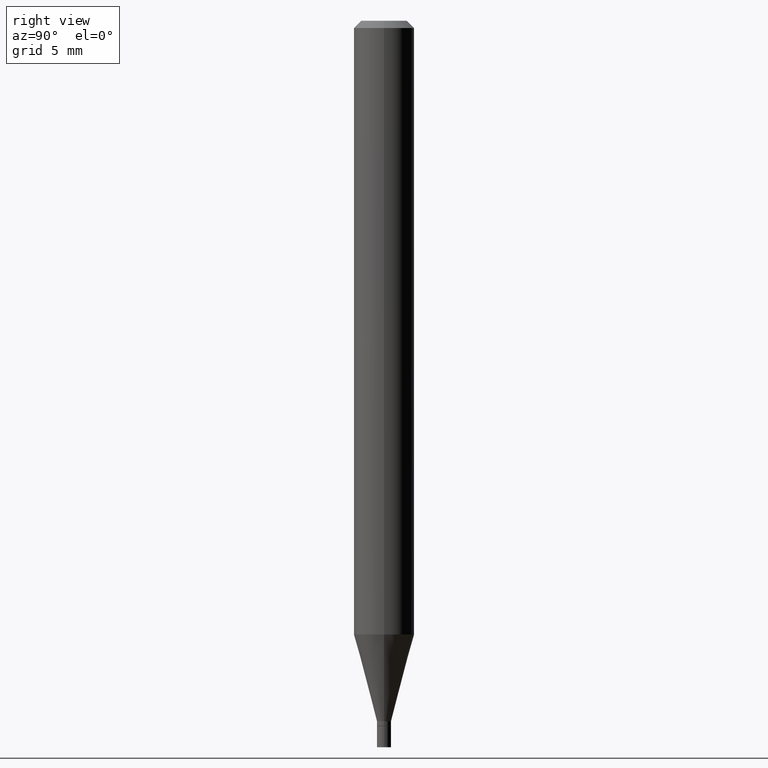
[diagram: clean part render]
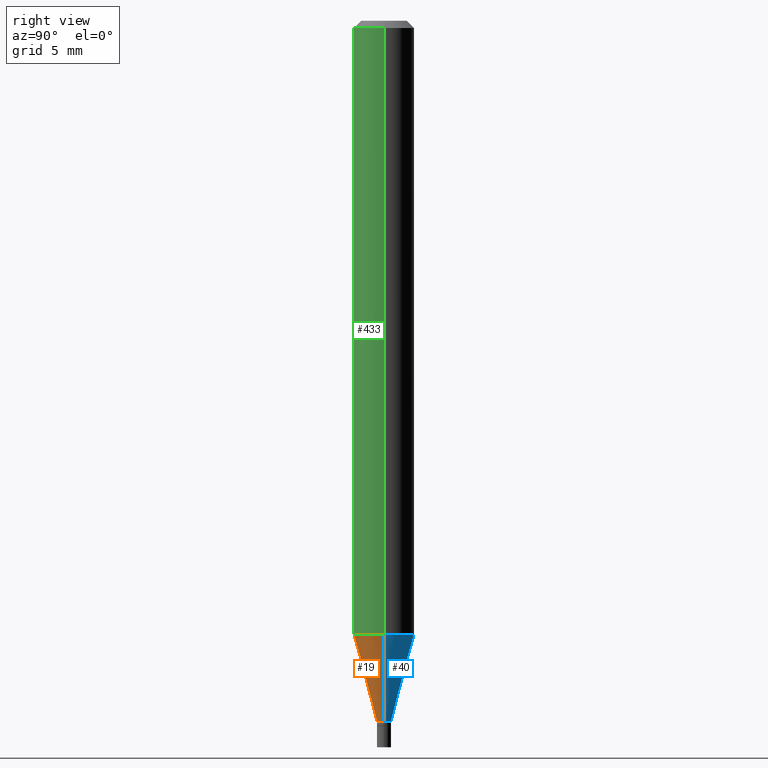
[diagram: same view with three faces highlighted in distinct colors, each labeled with its STEP entity id]
A machine part, right view with three faces highlighted in distinct colors.
Their STEP definitions:

[orange] entity #19 — the highlighted conical surface has half-angle 15 deg.
#3 = VERTEX_POINT ( 'NONE', #347 ) ;
#7 = CONICAL_SURFACE ( 'NONE', #322, 0.01449999999999992441, 0.2617993877991501295 ) ;
#9 = VECTOR ( 'NONE', #388, 39.37007874015747433 ) ;
#16 = DIRECTION ( 'NONE',  ( 1.000000000000000000, -6.982962677686269077E-15, 0.000000000000000000 ) ) ;
#19 = ADVANCED_FACE ( 'NONE', ( #201 ), #7, .T. ) ;
#39 = AXIS2_PLACEMENT_3D ( 'NONE', #334, #89, #16 ) ;
#48 = AXIS2_PLACEMENT_3D ( 'NONE', #301, #120, #128 ) ;
#49 = VECTOR ( 'NONE', #180, 39.37007874015747433 ) ;
#50 = CARTESIAN_POINT ( 'NONE',  ( 0.01449999999999992441, -5.151680715463060558E-15, -1.446499999999999897 ) ) ;
#54 = DIRECTION ( 'NONE',  ( -2.445468806185136597E-29, 3.491481338843145583E-15, 1.000000000000000000 ) ) ;
#74 = EDGE_CURVE ( 'NONE', #363, #210, #118, .T. ) ;
#76 = VERTEX_POINT ( 'NONE', #50 ) ;
#79 = CIRCLE ( 'NONE', #39, 0.01449999999999992441 ) ;
#89 = DIRECTION ( 'NONE',  ( -2.445468806185136597E-29, 3.491481338843145583E-15, 1.000000000000000000 ) ) ;
#98 = EDGE_CURVE ( 'NONE', #3, #76, #79, .T. ) ;
#118 = CIRCLE ( 'NONE', #48, 0.06250000000000000000 ) ;
#120 = DIRECTION ( 'NONE',  ( -2.445468806185136597E-29, 3.491481338843145583E-15, 1.000000000000000000 ) ) ;
#128 = DIRECTION ( 'NONE',  ( 1.000000000000000000, -6.982962677686262766E-15, 0.000000000000000000 ) ) ;
#180 = DIRECTION ( 'NONE',  ( -0.2588190451025214611, 5.211531920934551042E-15, 0.9659258262890682012 ) ) ;
#201 = FACE_OUTER_BOUND ( 'NONE', #402, .T. ) ;
#202 = DIRECTION ( 'NONE',  ( 1.000000000000000000, -6.982962677686269077E-15, 0.000000000000000000 ) ) ;
#210 = VERTEX_POINT ( 'NONE', #452 ) ;
#227 = LINE ( 'NONE', #340, #9 ) ;
#265 = ORIENTED_EDGE ( 'NONE', *, *, #440, .T. ) ;
#273 = ORIENTED_EDGE ( 'NONE', *, *, #315, .F. ) ;
#301 = CARTESIAN_POINT ( 'NONE',  ( 3.099293164162429184E-29, -4.424969240625031786E-15, -1.267361561236694190 ) ) ;
#315 = EDGE_CURVE ( 'NONE', #3, #363, #321, .T. ) ;
#321 = LINE ( 'NONE', #397, #49 ) ;
#322 = AXIS2_PLACEMENT_3D ( 'NONE', #384, #54, #202 ) ;
#327 = ORIENTED_EDGE ( 'NONE', *, *, #74, .F. ) ;
#334 = CARTESIAN_POINT ( 'NONE',  ( 3.537370628146800361E-29, -5.050427756636610195E-15, -1.446499999999999897 ) ) ;
#340 = CARTESIAN_POINT ( 'NONE',  ( 0.01449999999999992441, -5.151680715463060558E-15, -1.446499999999999897 ) ) ;
#347 = CARTESIAN_POINT ( 'NONE',  ( -0.01449999999999992441, -4.464139545363182176E-15, -1.446499999999999897 ) ) ;
#363 = VERTEX_POINT ( 'NONE', #423 ) ;
#384 = CARTESIAN_POINT ( 'NONE',  ( 3.537370628146800361E-29, -5.050427756636610195E-15, -1.446499999999999897 ) ) ;
#388 = DIRECTION ( 'NONE',  ( 0.2588190451025214611, 1.565188264969621573E-15, 0.9659258262890682012 ) ) ;
#397 = CARTESIAN_POINT ( 'NONE',  ( -0.01449999999999992441, -4.947399059951395971E-15, -1.446499999999999897 ) ) ;
#402 = EDGE_LOOP ( 'NONE', ( #273, #466, #265, #327 ) ) ;
#423 = CARTESIAN_POINT ( 'NONE',  ( -0.06249999999999999306, -3.980880030774969170E-15, -1.267361561236694190 ) ) ;
#440 = EDGE_CURVE ( 'NONE', #76, #210, #227, .T. ) ;
#452 = CARTESIAN_POINT ( 'NONE',  ( 0.06249999999999999306, -4.861404407980422667E-15, -1.267361561236694190 ) ) ;
#466 = ORIENTED_EDGE ( 'NONE', *, *, #98, .T. ) ;

[blue] entity #40 — the highlighted conical surface has half-angle 15 deg.
#3 = VERTEX_POINT ( 'NONE', #347 ) ;
#4 = EDGE_CURVE ( 'NONE', #76, #3, #94, .T. ) ;
#9 = VECTOR ( 'NONE', #388, 39.37007874015747433 ) ;
#35 = DIRECTION ( 'NONE',  ( -2.445468806185136597E-29, 3.491481338843145583E-15, 1.000000000000000000 ) ) ;
#40 = ADVANCED_FACE ( 'NONE', ( #140 ), #135, .T. ) ;
#49 = VECTOR ( 'NONE', #180, 39.37007874015747433 ) ;
#50 = CARTESIAN_POINT ( 'NONE',  ( 0.01449999999999992441, -5.151680715463060558E-15, -1.446499999999999897 ) ) ;
#61 = DIRECTION ( 'NONE',  ( -2.445468806185136597E-29, 3.491481338843145583E-15, 1.000000000000000000 ) ) ;
#76 = VERTEX_POINT ( 'NONE', #50 ) ;
#86 = AXIS2_PLACEMENT_3D ( 'NONE', #250, #35, #261 ) ;
#94 = CIRCLE ( 'NONE', #86, 0.01449999999999992441 ) ;
#109 = EDGE_LOOP ( 'NONE', ( #358, #112, #187, #399 ) ) ;
#112 = ORIENTED_EDGE ( 'NONE', *, *, #315, .T. ) ;
#135 = CONICAL_SURFACE ( 'NONE', #400, 0.01449999999999992441, 0.2617993877991501295 ) ;
#140 = FACE_OUTER_BOUND ( 'NONE', #109, .T. ) ;
#180 = DIRECTION ( 'NONE',  ( -0.2588190451025214611, 5.211531920934551042E-15, 0.9659258262890682012 ) ) ;
#187 = ORIENTED_EDGE ( 'NONE', *, *, #290, .F. ) ;
#208 = DIRECTION ( 'NONE',  ( 1.000000000000000000, -6.982962677686269077E-15, 0.000000000000000000 ) ) ;
#210 = VERTEX_POINT ( 'NONE', #452 ) ;
#215 = DIRECTION ( 'NONE',  ( -2.445468806185136597E-29, 3.491481338843145583E-15, 1.000000000000000000 ) ) ;
#227 = LINE ( 'NONE', #340, #9 ) ;
#249 = CARTESIAN_POINT ( 'NONE',  ( 3.099293164162429184E-29, -4.424969240625031786E-15, -1.267361561236694190 ) ) ;
#250 = CARTESIAN_POINT ( 'NONE',  ( 3.537370628146800361E-29, -5.050427756636610195E-15, -1.446499999999999897 ) ) ;
#253 = CIRCLE ( 'NONE', #380, 0.06250000000000000000 ) ;
#261 = DIRECTION ( 'NONE',  ( 1.000000000000000000, -6.982962677686269077E-15, 0.000000000000000000 ) ) ;
#290 = EDGE_CURVE ( 'NONE', #210, #363, #253, .T. ) ;
#315 = EDGE_CURVE ( 'NONE', #3, #363, #321, .T. ) ;
#321 = LINE ( 'NONE', #397, #49 ) ;
#324 = DIRECTION ( 'NONE',  ( 1.000000000000000000, -6.982962677686262766E-15, 0.000000000000000000 ) ) ;
#340 = CARTESIAN_POINT ( 'NONE',  ( 0.01449999999999992441, -5.151680715463060558E-15, -1.446499999999999897 ) ) ;
#347 = CARTESIAN_POINT ( 'NONE',  ( -0.01449999999999992441, -4.464139545363182176E-15, -1.446499999999999897 ) ) ;
#358 = ORIENTED_EDGE ( 'NONE', *, *, #4, .T. ) ;
#362 = CARTESIAN_POINT ( 'NONE',  ( 3.537370628146800361E-29, -5.050427756636610195E-15, -1.446499999999999897 ) ) ;
#363 = VERTEX_POINT ( 'NONE', #423 ) ;
#380 = AXIS2_PLACEMENT_3D ( 'NONE', #249, #215, #324 ) ;
#388 = DIRECTION ( 'NONE',  ( 0.2588190451025214611, 1.565188264969621573E-15, 0.9659258262890682012 ) ) ;
#397 = CARTESIAN_POINT ( 'NONE',  ( -0.01449999999999992441, -4.947399059951395971E-15, -1.446499999999999897 ) ) ;
#399 = ORIENTED_EDGE ( 'NONE', *, *, #440, .F. ) ;
#400 = AXIS2_PLACEMENT_3D ( 'NONE', #362, #61, #208 ) ;
#423 = CARTESIAN_POINT ( 'NONE',  ( -0.06249999999999999306, -3.980880030774969170E-15, -1.267361561236694190 ) ) ;
#440 = EDGE_CURVE ( 'NONE', #76, #210, #227, .T. ) ;
#452 = CARTESIAN_POINT ( 'NONE',  ( 0.06249999999999999306, -4.861404407980422667E-15, -1.267361561236694190 ) ) ;

[green] entity #433 — the highlighted cylindrical surface (edge-blend (fillet) strip) has radius 1.5875 mm, axis along (-0, 0, 1).
#20 = DIRECTION ( 'NONE',  ( -2.445468806185136877E-29, 3.491481338843145188E-15, 1.000000000000000000 ) ) ;
#29 = CARTESIAN_POINT ( 'NONE',  ( 3.668203209277705088E-31, -5.237222008264718399E-17, -0.01499999999999999944 ) ) ;
#48 = AXIS2_PLACEMENT_3D ( 'NONE', #301, #120, #128 ) ;
#52 = LINE ( 'NONE', #344, #367 ) ;
#74 = EDGE_CURVE ( 'NONE', #363, #210, #118, .T. ) ;
#83 = LINE ( 'NONE', #235, #119 ) ;
#111 = ORIENTED_EDGE ( 'NONE', *, *, #121, .T. ) ;
#118 = CIRCLE ( 'NONE', #48, 0.06250000000000000000 ) ;
#119 = VECTOR ( 'NONE', #165, 39.37007874015748143 ) ;
#120 = DIRECTION ( 'NONE',  ( -2.445468806185136597E-29, 3.491481338843145583E-15, 1.000000000000000000 ) ) ;
#121 = EDGE_CURVE ( 'NONE', #210, #339, #83, .T. ) ;
#124 = DIRECTION ( 'NONE',  ( 1.000000000000000000, -6.982962677686266711E-15, 4.876176775795935793E-29 ) ) ;
#127 = ORIENTED_EDGE ( 'NONE', *, *, #74, .T. ) ;
#128 = DIRECTION ( 'NONE',  ( 1.000000000000000000, -6.982962677686262766E-15, 0.000000000000000000 ) ) ;
#143 = VERTEX_POINT ( 'NONE', #449 ) ;
#149 = FACE_OUTER_BOUND ( 'NONE', #234, .T. ) ;
#165 = DIRECTION ( 'NONE',  ( -2.445468806185136877E-29, 3.491481338843145188E-15, 1.000000000000000000 ) ) ;
#190 = ORIENTED_EDGE ( 'NONE', *, *, #298, .F. ) ;
#203 = AXIS2_PLACEMENT_3D ( 'NONE', #29, #463, #286 ) ;
#210 = VERTEX_POINT ( 'NONE', #452 ) ;
#219 = CARTESIAN_POINT ( 'NONE',  ( 0.000000000000000000, 0.000000000000000000, 0.000000000000000000 ) ) ;
#234 = EDGE_LOOP ( 'NONE', ( #437, #127, #111, #190 ) ) ;
#235 = CARTESIAN_POINT ( 'NONE',  ( 0.06250000000000000000, -4.364351673553916694E-16, 3.047610484872459871E-30 ) ) ;
#268 = AXIS2_PLACEMENT_3D ( 'NONE', #219, #368, #124 ) ;
#286 = DIRECTION ( 'NONE',  ( 1.000000000000000000, -6.982962677686266711E-15, 0.000000000000000000 ) ) ;
#298 = EDGE_CURVE ( 'NONE', #143, #339, #355, .T. ) ;
#301 = CARTESIAN_POINT ( 'NONE',  ( 3.099293164162429184E-29, -4.424969240625031786E-15, -1.267361561236694190 ) ) ;
#339 = VERTEX_POINT ( 'NONE', #458 ) ;
#344 = CARTESIAN_POINT ( 'NONE',  ( -0.06250000000000000000, 4.440892098500626162E-16, -3.074334431409316114E-30 ) ) ;
#355 = CIRCLE ( 'NONE', #203, 0.06250000000000000000 ) ;
#363 = VERTEX_POINT ( 'NONE', #423 ) ;
#367 = VECTOR ( 'NONE', #20, 39.37007874015748143 ) ;
#368 = DIRECTION ( 'NONE',  ( -2.445468806185136597E-29, 3.491481338843145583E-15, 1.000000000000000000 ) ) ;
#423 = CARTESIAN_POINT ( 'NONE',  ( -0.06249999999999999306, -3.980880030774969170E-15, -1.267361561236694190 ) ) ;
#433 = ADVANCED_FACE ( 'NONE', ( #149 ), #434, .T. ) ;
#434 = CYLINDRICAL_SURFACE ( 'NONE', #268, 0.06250000000000000000 ) ;
#435 = EDGE_CURVE ( 'NONE', #363, #143, #52, .T. ) ;
#437 = ORIENTED_EDGE ( 'NONE', *, *, #435, .F. ) ;
#449 = CARTESIAN_POINT ( 'NONE',  ( -0.06250000000000000000, -1.794581520503777014E-15, -0.01499999999999999944 ) ) ;
#452 = CARTESIAN_POINT ( 'NONE',  ( 0.06249999999999999306, -4.861404407980422667E-15, -1.267361561236694190 ) ) ;
#458 = CARTESIAN_POINT ( 'NONE',  ( 0.06250000000000000000, -4.888073874380388472E-16, -0.01499999999999999944 ) ) ;
#463 = DIRECTION ( 'NONE',  ( -2.445468806185136597E-29, 3.491481338843145583E-15, 1.000000000000000000 ) ) ;